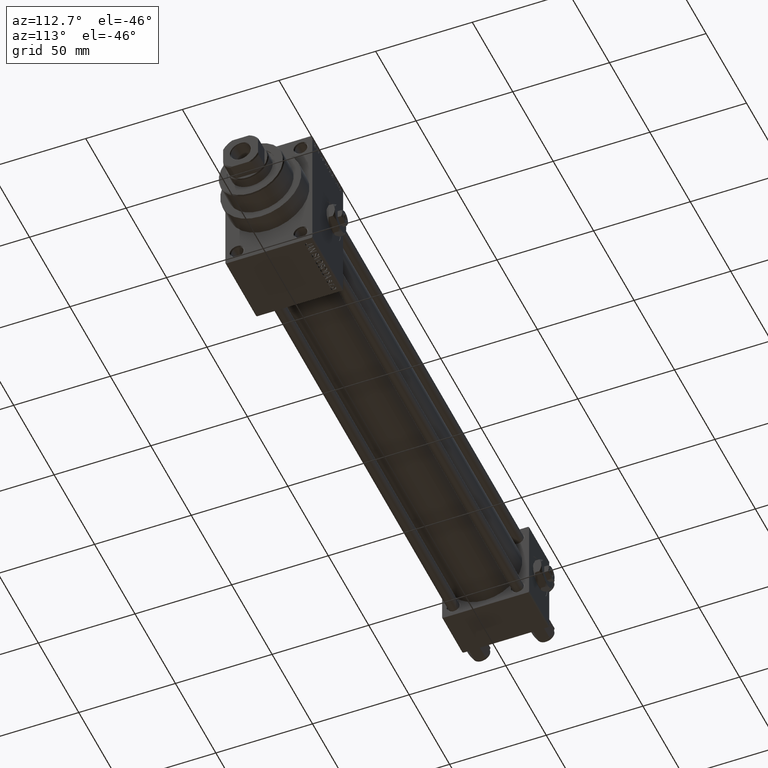
[diagram: clean part render]
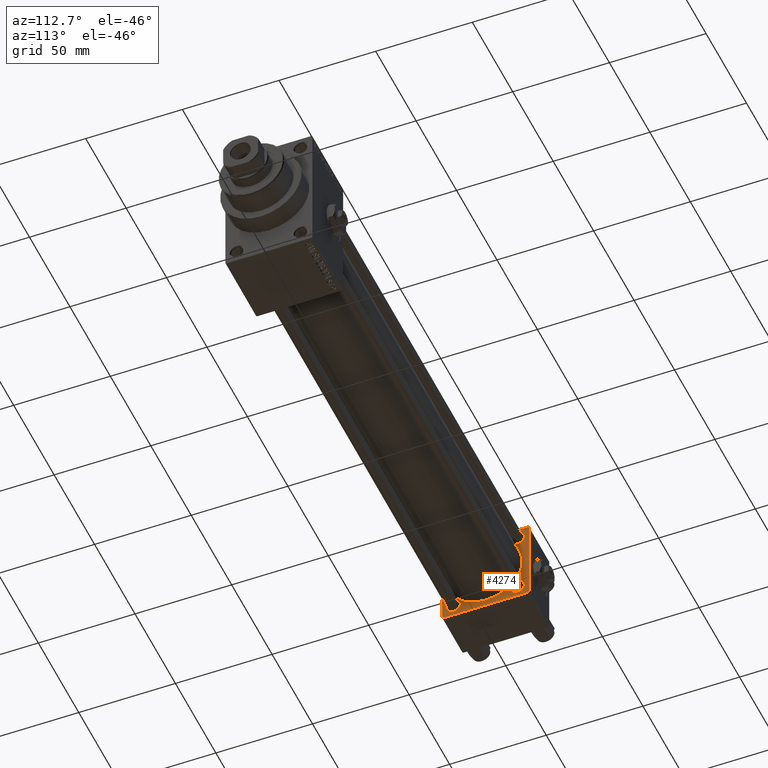
[diagram: same view with one face highlighted and labeled with its STEP entity id]
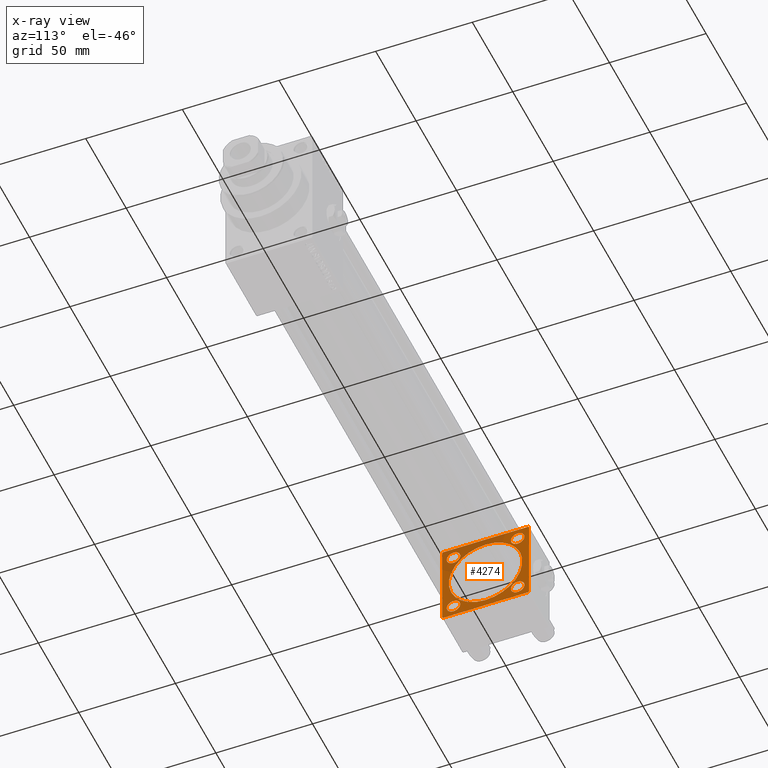
[diagram: x-ray of the same camera — body ghosted, the highlighted face saturated]
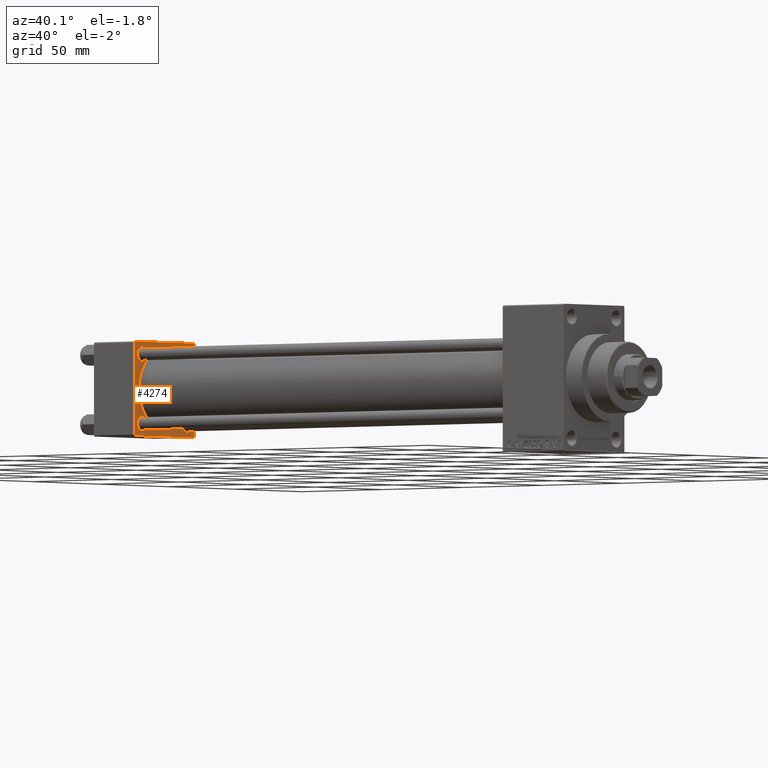
[diagram: same view with one face highlighted and labeled with its STEP entity id]
A machine part, auxiliary view. The second image highlights one B-rep face of the part: STEP entity #4274.
The next image is the same camera in x-ray: the body ghosted, the highlighted face saturated — about 26% of this face is hidden behind the body in this view.
A second angle (auxiliary view) of the same face is appended — the face is thin or edge-on in the first view.
In plain terms, the highlighted planar face has unit normal (-1, 0, 0).
Its self-contained STEP definition (entity closure, byte-faithful):
#18 = EDGE_LOOP ( 'NONE', ( #10268, #43987 ) ) ;
#129 = DIRECTION ( 'NONE',  ( 0.000000000000000000, -0.7071067811865474617, 0.7071067811865474617 ) ) ;
#388 = VERTEX_POINT ( 'NONE', #21879 ) ;
#631 = EDGE_CURVE ( 'NONE', #3648, #38986, #37391, .T. ) ;
#1565 = ORIENTED_EDGE ( 'NONE', *, *, #43586, .T. ) ;
#1609 = DIRECTION ( 'NONE',  ( 0.000000000000000000, 0.000000000000000000, 1.000000000000000000 ) ) ;
#1812 = CARTESIAN_POINT ( 'NONE',  ( 24.99999999999999289, -2.602085213965210642E-15, 0.000000000000000000 ) ) ;
#3506 = VERTEX_POINT ( 'NONE', #45706 ) ;
#3648 = VERTEX_POINT ( 'NONE', #27326 ) ;
#3783 = VERTEX_POINT ( 'NONE', #35864 ) ;
#3801 = DIRECTION ( 'NONE',  ( 0.000000000000000000, 0.000000000000000000, -1.000000000000000000 ) ) ;
#4187 = ORIENTED_EDGE ( 'NONE', *, *, #30494, .T. ) ;
#4238 = CARTESIAN_POINT ( 'NONE',  ( 24.99999999999999289, -2.752562955852396712E-16, -19.00000000000000000 ) ) ;
#4274 = ADVANCED_FACE ( 'NONE', ( #17682, #14193, #25640, #33068, #21165, #25146 ), #29115, .F. ) ;
#4388 = EDGE_CURVE ( 'NONE', #14412, #388, #46692, .T. ) ;
#4488 = DIRECTION ( 'NONE',  ( 0.000000000000000000, -1.000000000000000000, -2.312964634635742957E-16 ) ) ;
#4653 = ORIENTED_EDGE ( 'NONE', *, *, #36335, .T. ) ;
#4831 = CARTESIAN_POINT ( 'NONE',  ( 25.00000000000000000, -16.59999999999999076, -16.60000000000000853 ) ) ;
#5225 = ORIENTED_EDGE ( 'NONE', *, *, #21486, .T. ) ;
#5285 = VERTEX_POINT ( 'NONE', #27228 ) ;
#5317 = CARTESIAN_POINT ( 'NONE',  ( 25.00000000000000000, -21.99999999999997868, 22.50000000000000000 ) ) ;
#5329 = CARTESIAN_POINT ( 'NONE',  ( 25.00000000000000000, 16.59999999999999787, -16.60000000000000497 ) ) ;
#5631 = AXIS2_PLACEMENT_3D ( 'NONE', #10179, #17880, #25341 ) ;
#5715 = DIRECTION ( 'NONE',  ( 0.000000000000000000, 0.000000000000000000, 1.000000000000000000 ) ) ;
#5823 = CARTESIAN_POINT ( 'NONE',  ( 25.00000000000000000, -16.59999999999999076, 16.60000000000000853 ) ) ;
#7003 = CARTESIAN_POINT ( 'NONE',  ( 25.00000000000000000, 16.59999999999999787, 13.10000000000000142 ) ) ;
#7961 = EDGE_CURVE ( 'NONE', #47097, #36733, #13530, .T. ) ;
#8009 = VECTOR ( 'NONE', #15036, 1000.000000000000000 ) ;
#8489 = LINE ( 'NONE', #12701, #27490 ) ;
#8511 = AXIS2_PLACEMENT_3D ( 'NONE', #4831, #19976, #39096 ) ;
#8943 = CARTESIAN_POINT ( 'NONE',  ( 25.00000000000000000, 22.50000000000000000, -22.49999999999999645 ) ) ;
#9233 = CARTESIAN_POINT ( 'NONE',  ( 24.99999999999999289, -2.602085213965210642E-15, 19.00000000000000000 ) ) ;
#9267 = AXIS2_PLACEMENT_3D ( 'NONE', #1812, #16942, #32089 ) ;
#9289 = CARTESIAN_POINT ( 'NONE',  ( 25.00000000000000000, 22.50000000000000000, 22.50000000000000355 ) ) ;
#9302 = CIRCLE ( 'NONE', #41043, 3.500000000000003109 ) ;
#9606 = EDGE_CURVE ( 'NONE', #10744, #3506, #47680, .T. ) ;
#10179 = CARTESIAN_POINT ( 'NONE',  ( 24.99999999999999289, -2.602085213965210642E-15, 0.000000000000000000 ) ) ;
#10268 = ORIENTED_EDGE ( 'NONE', *, *, #30152, .F. ) ;
#10294 = CIRCLE ( 'NONE', #16624, 3.500000000000003109 ) ;
#10476 = DIRECTION ( 'NONE',  ( -1.000000000000000000, 0.000000000000000000, -0.000000000000000000 ) ) ;
#10621 = VECTOR ( 'NONE', #4488, 1000.000000000000000 ) ;
#10657 = ORIENTED_EDGE ( 'NONE', *, *, #11638, .T. ) ;
#10744 = VERTEX_POINT ( 'NONE', #37590 ) ;
#11236 = CARTESIAN_POINT ( 'NONE',  ( 25.00000000000000000, 16.59999999999999787, -13.10000000000000142 ) ) ;
#11638 = EDGE_CURVE ( 'NONE', #40535, #388, #18780, .T. ) ;
#12701 = CARTESIAN_POINT ( 'NONE',  ( 25.00000000000000000, 22.50000000000000000, -21.99999999999998224 ) ) ;
#13099 = CARTESIAN_POINT ( 'NONE',  ( 25.00000000000000000, 21.99999999999999289, 22.50000000000000355 ) ) ;
#13437 = VERTEX_POINT ( 'NONE', #13500 ) ;
#13445 = CARTESIAN_POINT ( 'NONE',  ( 25.00000000000000000, 22.50000000000000000, 22.50000000000000355 ) ) ;
#13500 = CARTESIAN_POINT ( 'NONE',  ( 25.00000000000000000, -22.50000000000000000, 22.00000000000000000 ) ) ;
#13529 = VERTEX_POINT ( 'NONE', #7003 ) ;
#13530 = CIRCLE ( 'NONE', #5631, 19.00000000000000000 ) ;
#14193 = FACE_BOUND ( 'NONE', #48814, .T. ) ;
#14412 = VERTEX_POINT ( 'NONE', #24417 ) ;
#14582 = AXIS2_PLACEMENT_3D ( 'NONE', #36305, #10476, #40288 ) ;
#14655 = CIRCLE ( 'NONE', #39233, 3.500000000000003109 ) ;
#15036 = DIRECTION ( 'NONE',  ( 0.000000000000000000, 0.7071067811865426878, -0.7071067811865524577 ) ) ;
#15185 = DIRECTION ( 'NONE',  ( 0.000000000000000000, 0.000000000000000000, 1.000000000000000000 ) ) ;
#15224 = ORIENTED_EDGE ( 'NONE', *, *, #631, .T. ) ;
#15650 = CARTESIAN_POINT ( 'NONE',  ( 25.00000000000000000, 16.59999999999999787, -16.60000000000000497 ) ) ;
#16178 = DIRECTION ( 'NONE',  ( -0.000000000000000000, 0.7071067811865426878, 0.7071067811865524577 ) ) ;
#16491 = DIRECTION ( 'NONE',  ( 0.000000000000000000, 0.000000000000000000, 1.000000000000000000 ) ) ;
#16624 = AXIS2_PLACEMENT_3D ( 'NONE', #48697, #37265, #30051 ) ;
#16891 = CIRCLE ( 'NONE', #29604, 3.499999999999978684 ) ;
#16942 = DIRECTION ( 'NONE',  ( 1.000000000000000000, -0.000000000000000000, 0.000000000000000000 ) ) ;
#17633 = EDGE_CURVE ( 'NONE', #3783, #5285, #16891, .T. ) ;
#17682 = FACE_BOUND ( 'NONE', #36889, .T. ) ;
#17877 = DIRECTION ( 'NONE',  ( -1.000000000000000000, 0.000000000000000000, -0.000000000000000000 ) ) ;
#17880 = DIRECTION ( 'NONE',  ( 1.000000000000000000, -0.000000000000000000, 0.000000000000000000 ) ) ;
#17996 = AXIS2_PLACEMENT_3D ( 'NONE', #28321, #17877, #5715 ) ;
#18709 = CARTESIAN_POINT ( 'NONE',  ( 25.00000000000000000, -22.50000000000000000, 22.50000000000000000 ) ) ;
#18780 = LINE ( 'NONE', #33907, #8009 ) ;
#18927 = CARTESIAN_POINT ( 'NONE',  ( 25.00000000000000000, -16.59999999999999076, -16.60000000000000853 ) ) ;
#18931 = ORIENTED_EDGE ( 'NONE', *, *, #36724, .T. ) ;
#19151 = VECTOR ( 'NONE', #3801, 1000.000000000000000 ) ;
#19236 = CARTESIAN_POINT ( 'NONE',  ( 25.00000000000000000, -22.50000000000000000, 22.00000000000000000 ) ) ;
#19245 = CARTESIAN_POINT ( 'NONE',  ( 25.00000000000000000, 21.99999999999999289, 22.50000000000000355 ) ) ;
#19254 = ORIENTED_EDGE ( 'NONE', *, *, #33751, .T. ) ;
#19976 = DIRECTION ( 'NONE',  ( -1.000000000000000000, 0.000000000000000000, -0.000000000000000000 ) ) ;
#20323 = CARTESIAN_POINT ( 'NONE',  ( 25.00000000000000000, 16.59999999999999787, 16.60000000000000497 ) ) ;
#20717 = ORIENTED_EDGE ( 'NONE', *, *, #25021, .T. ) ;
#21165 = FACE_BOUND ( 'NONE', #18, .T. ) ;
#21185 = CARTESIAN_POINT ( 'NONE',  ( 25.00000000000000000, 16.59999999999999787, -20.10000000000000853 ) ) ;
#21486 = EDGE_CURVE ( 'NONE', #33396, #13437, #33399, .T. ) ;
#21879 = CARTESIAN_POINT ( 'NONE',  ( 25.00000000000000000, -21.99999999999997158, -22.50000000000000711 ) ) ;
#23114 = DIRECTION ( 'NONE',  ( -1.000000000000000000, 0.000000000000000000, -0.000000000000000000 ) ) ;
#23553 = CIRCLE ( 'NONE', #9267, 19.00000000000000000 ) ;
#23732 = EDGE_LOOP ( 'NONE', ( #48376, #19254, #30712, #15224, #18931, #5225, #30985, #10657 ) ) ;
#24062 = DIRECTION ( 'NONE',  ( 0.000000000000000000, 0.000000000000000000, 1.000000000000000000 ) ) ;
#24207 = DIRECTION ( 'NONE',  ( -1.000000000000000000, 0.000000000000000000, -0.000000000000000000 ) ) ;
#24417 = CARTESIAN_POINT ( 'NONE',  ( 25.00000000000000000, 21.99999999999999289, -22.49999999999999645 ) ) ;
#25021 = EDGE_CURVE ( 'NONE', #13529, #47606, #14655, .T. ) ;
#25146 = FACE_OUTER_BOUND ( 'NONE', #23732, .T. ) ;
#25341 = DIRECTION ( 'NONE',  ( 0.000000000000000000, 0.000000000000000000, 1.000000000000000000 ) ) ;
#25640 = FACE_BOUND ( 'NONE', #43387, .T. ) ;
#26814 = CARTESIAN_POINT ( 'NONE',  ( 25.00000000000000000, 16.59999999999999787, 20.10000000000000853 ) ) ;
#27228 = CARTESIAN_POINT ( 'NONE',  ( 25.00000000000000000, -16.59999999999999076, 20.09999999999998721 ) ) ;
#27326 = CARTESIAN_POINT ( 'NONE',  ( 25.00000000000000000, 22.50000000000000000, 21.99999999999999645 ) ) ;
#27490 = VECTOR ( 'NONE', #16178, 1000.000000000000000 ) ;
#27593 = VECTOR ( 'NONE', #43025, 1000.000000000000000 ) ;
#27683 = LINE ( 'NONE', #9289, #30635 ) ;
#27855 = CARTESIAN_POINT ( 'NONE',  ( 25.00000000000000000, 22.50000000000000000, -21.99999999999996803 ) ) ;
#28321 = CARTESIAN_POINT ( 'NONE',  ( 25.00000000000000000, -16.59999999999999076, 16.60000000000000853 ) ) ;
#29115 = PLANE ( 'NONE',  #14582 ) ;
#29320 = EDGE_CURVE ( 'NONE', #3648, #47495, #27683, .T. ) ;
#29390 = CARTESIAN_POINT ( 'NONE',  ( 25.00000000000000000, -22.50000000000000000, -21.99999999999997158 ) ) ;
#29604 = AXIS2_PLACEMENT_3D ( 'NONE', #5823, #24207, #16491 ) ;
#29906 = CIRCLE ( 'NONE', #17996, 3.499999999999978684 ) ;
#30051 = DIRECTION ( 'NONE',  ( 0.000000000000000000, 0.000000000000000000, 1.000000000000000000 ) ) ;
#30152 = EDGE_CURVE ( 'NONE', #36733, #47097, #23553, .T. ) ;
#30242 = EDGE_CURVE ( 'NONE', #32467, #44751, #33066, .T. ) ;
#30494 = EDGE_CURVE ( 'NONE', #5285, #3783, #29906, .T. ) ;
#30635 = VECTOR ( 'NONE', #36355, 1000.000000000000000 ) ;
#30712 = ORIENTED_EDGE ( 'NONE', *, *, #29320, .F. ) ;
#30985 = ORIENTED_EDGE ( 'NONE', *, *, #48311, .T. ) ;
#32056 = EDGE_LOOP ( 'NONE', ( #20717, #1565 ) ) ;
#32089 = DIRECTION ( 'NONE',  ( 0.000000000000000000, 0.000000000000000000, 1.000000000000000000 ) ) ;
#32467 = VERTEX_POINT ( 'NONE', #21185 ) ;
#33066 = CIRCLE ( 'NONE', #43380, 3.500000000000003109 ) ;
#33068 = FACE_BOUND ( 'NONE', #32056, .T. ) ;
#33396 = VERTEX_POINT ( 'NONE', #5317 ) ;
#33399 = LINE ( 'NONE', #19236, #42425 ) ;
#33426 = AXIS2_PLACEMENT_3D ( 'NONE', #18927, #41292, #15185 ) ;
#33505 = ORIENTED_EDGE ( 'NONE', *, *, #30242, .T. ) ;
#33751 = EDGE_CURVE ( 'NONE', #14412, #47495, #8489, .T. ) ;
#33907 = CARTESIAN_POINT ( 'NONE',  ( 25.00000000000000000, -21.99999999999998579, -22.50000000000000711 ) ) ;
#34069 = LINE ( 'NONE', #18709, #19151 ) ;
#34280 = DIRECTION ( 'NONE',  ( 0.000000000000000000, 0.000000000000000000, 1.000000000000000000 ) ) ;
#34368 = DIRECTION ( 'NONE',  ( -0.000000000000000000, -0.7071067811865525687, -0.7071067811865425767 ) ) ;
#34749 = EDGE_CURVE ( 'NONE', #44751, #32467, #9302, .T. ) ;
#35610 = DIRECTION ( 'NONE',  ( -1.000000000000000000, 0.000000000000000000, -0.000000000000000000 ) ) ;
#35864 = CARTESIAN_POINT ( 'NONE',  ( 25.00000000000000000, -16.59999999999999076, 13.10000000000002807 ) ) ;
#36305 = CARTESIAN_POINT ( 'NONE',  ( 25.00000000000000000, 0.000000000000000000, 0.000000000000000000 ) ) ;
#36335 = EDGE_CURVE ( 'NONE', #3506, #10744, #46585, .T. ) ;
#36355 = DIRECTION ( 'NONE',  ( 0.000000000000000000, 0.000000000000000000, -1.000000000000000000 ) ) ;
#36724 = EDGE_CURVE ( 'NONE', #38986, #33396, #42774, .T. ) ;
#36733 = VERTEX_POINT ( 'NONE', #9233 ) ;
#36889 = EDGE_LOOP ( 'NONE', ( #4653, #42294 ) ) ;
#37265 = DIRECTION ( 'NONE',  ( -1.000000000000000000, 0.000000000000000000, -0.000000000000000000 ) ) ;
#37391 = LINE ( 'NONE', #19245, #42241 ) ;
#37590 = CARTESIAN_POINT ( 'NONE',  ( 25.00000000000000000, -16.59999999999999076, -13.10000000000003162 ) ) ;
#38986 = VERTEX_POINT ( 'NONE', #13099 ) ;
#39096 = DIRECTION ( 'NONE',  ( 0.000000000000000000, 0.000000000000000000, 1.000000000000000000 ) ) ;
#39233 = AXIS2_PLACEMENT_3D ( 'NONE', #20323, #47393, #24062 ) ;
#40288 = DIRECTION ( 'NONE',  ( -0.000000000000000000, 0.000000000000000000, 1.000000000000000000 ) ) ;
#40535 = VERTEX_POINT ( 'NONE', #29390 ) ;
#41043 = AXIS2_PLACEMENT_3D ( 'NONE', #5329, #35610, #1609 ) ;
#41292 = DIRECTION ( 'NONE',  ( -1.000000000000000000, 0.000000000000000000, -0.000000000000000000 ) ) ;
#41707 = ORIENTED_EDGE ( 'NONE', *, *, #17633, .T. ) ;
#42241 = VECTOR ( 'NONE', #129, 1000.000000000000114 ) ;
#42294 = ORIENTED_EDGE ( 'NONE', *, *, #9606, .T. ) ;
#42425 = VECTOR ( 'NONE', #34368, 999.9999999999998863 ) ;
#42537 = ORIENTED_EDGE ( 'NONE', *, *, #34749, .T. ) ;
#42774 = LINE ( 'NONE', #13445, #27593 ) ;
#43025 = DIRECTION ( 'NONE',  ( 0.000000000000000000, -1.000000000000000000, -7.709882115452476934E-17 ) ) ;
#43380 = AXIS2_PLACEMENT_3D ( 'NONE', #15650, #23114, #34280 ) ;
#43387 = EDGE_LOOP ( 'NONE', ( #41707, #4187 ) ) ;
#43586 = EDGE_CURVE ( 'NONE', #47606, #13529, #10294, .T. ) ;
#43987 = ORIENTED_EDGE ( 'NONE', *, *, #7961, .F. ) ;
#44751 = VERTEX_POINT ( 'NONE', #11236 ) ;
#45706 = CARTESIAN_POINT ( 'NONE',  ( 25.00000000000000000, -16.59999999999999076, -20.09999999999998366 ) ) ;
#46585 = CIRCLE ( 'NONE', #8511, 3.499999999999975131 ) ;
#46692 = LINE ( 'NONE', #8943, #10621 ) ;
#47097 = VERTEX_POINT ( 'NONE', #4238 ) ;
#47393 = DIRECTION ( 'NONE',  ( -1.000000000000000000, 0.000000000000000000, -0.000000000000000000 ) ) ;
#47495 = VERTEX_POINT ( 'NONE', #27855 ) ;
#47606 = VERTEX_POINT ( 'NONE', #26814 ) ;
#47680 = CIRCLE ( 'NONE', #33426, 3.499999999999975131 ) ;
#48311 = EDGE_CURVE ( 'NONE', #13437, #40535, #34069, .T. ) ;
#48376 = ORIENTED_EDGE ( 'NONE', *, *, #4388, .F. ) ;
#48697 = CARTESIAN_POINT ( 'NONE',  ( 25.00000000000000000, 16.59999999999999787, 16.60000000000000497 ) ) ;
#48814 = EDGE_LOOP ( 'NONE', ( #33505, #42537 ) ) ;